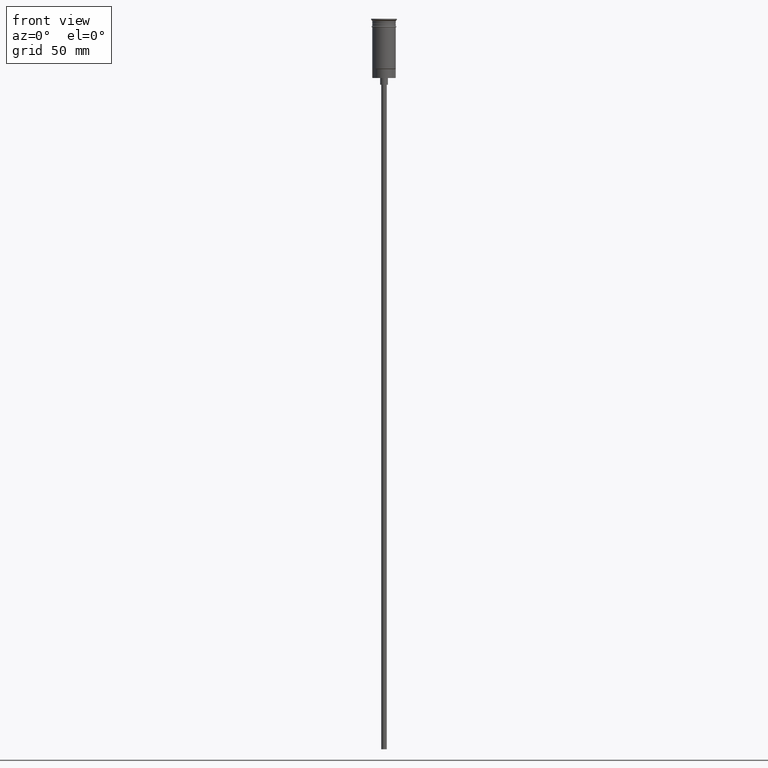
[diagram: clean part render]
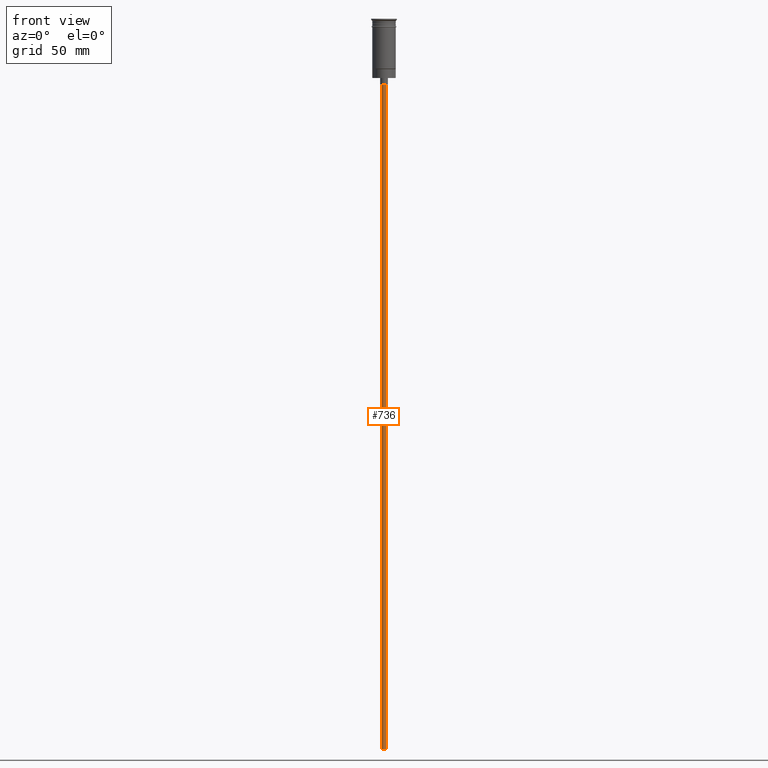
[diagram: same view with one face highlighted and labeled with its STEP entity id]
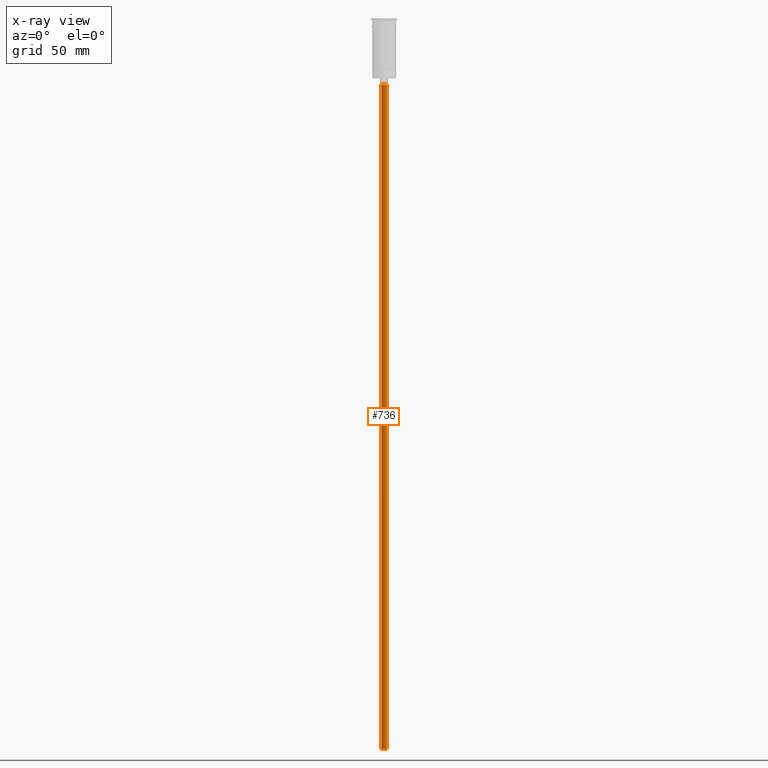
[diagram: x-ray of the same camera — body ghosted, the highlighted face saturated]
A machine part, front view. The second image highlights one B-rep face of the part: STEP entity #736.
The next image is the same camera in x-ray: the body ghosted, the highlighted face saturated — about 0% of this face is hidden behind the body in this view.
In plain terms, the highlighted cylindrical surface (edge-blend (fillet) strip) has radius 1.25 mm, axis along (-0, -0, 1).
Its self-contained STEP definition (entity closure, byte-faithful):
#3 = DIRECTION ( 'NONE',  ( -0.000000000000000000, -0.000000000000000000, 1.000000000000000000 ) ) ;
#38 = AXIS2_PLACEMENT_3D ( 'NONE', #992, #1119, #1507 ) ;
#104 = DIRECTION ( 'NONE',  ( -1.000000000000000000, 0.000000000000000000, 0.000000000000000000 ) ) ;
#109 = DIRECTION ( 'NONE',  ( 0.000000000000000000, 0.000000000000000000, -1.000000000000000000 ) ) ;
#126 = ORIENTED_EDGE ( 'NONE', *, *, #962, .F. ) ;
#218 = VERTEX_POINT ( 'NONE', #461 ) ;
#312 = EDGE_LOOP ( 'NONE', ( #699, #126, #1016, #1198 ) ) ;
#325 = CARTESIAN_POINT ( 'NONE',  ( 0.000000000000000000, 0.000000000000000000, -29.50000000000000000 ) ) ;
#340 = VERTEX_POINT ( 'NONE', #650 ) ;
#380 = EDGE_CURVE ( 'NONE', #1556, #1423, #1485, .T. ) ;
#423 = CIRCLE ( 'NONE', #1106, 1.250000000000000000 ) ;
#439 = EDGE_CURVE ( 'NONE', #340, #1423, #1275, .T. ) ;
#461 = CARTESIAN_POINT ( 'NONE',  ( 1.250000000000000000, 0.000000000000000000, -326.5000000000000000 ) ) ;
#489 = CARTESIAN_POINT ( 'NONE',  ( -1.250000000000000000, 1.530808498934191571E-16, -326.5000000000000000 ) ) ;
#567 = VECTOR ( 'NONE', #3, 1000.000000000000000 ) ;
#630 = AXIS2_PLACEMENT_3D ( 'NONE', #325, #109, #1036 ) ;
#650 = CARTESIAN_POINT ( 'NONE',  ( 1.250000000000000000, 0.000000000000000000, -29.50000000000000000 ) ) ;
#699 = ORIENTED_EDGE ( 'NONE', *, *, #380, .F. ) ;
#723 = DIRECTION ( 'NONE',  ( 0.000000000000000000, 0.000000000000000000, -1.000000000000000000 ) ) ;
#736 = ADVANCED_FACE ( 'NONE', ( #1137 ), #1125, .T. ) ;
#737 = DIRECTION ( 'NONE',  ( -0.000000000000000000, -0.000000000000000000, 1.000000000000000000 ) ) ;
#777 = CARTESIAN_POINT ( 'NONE',  ( -1.250000000000000000, 1.530808498934191571E-16, -326.5000000000000000 ) ) ;
#962 = EDGE_CURVE ( 'NONE', #218, #1556, #423, .T. ) ;
#992 = CARTESIAN_POINT ( 'NONE',  ( 0.000000000000000000, 0.000000000000000000, -326.5000000000000000 ) ) ;
#1016 = ORIENTED_EDGE ( 'NONE', *, *, #1309, .T. ) ;
#1036 = DIRECTION ( 'NONE',  ( -1.000000000000000000, 0.000000000000000000, 0.000000000000000000 ) ) ;
#1052 = VECTOR ( 'NONE', #737, 1000.000000000000000 ) ;
#1106 = AXIS2_PLACEMENT_3D ( 'NONE', #1460, #723, #104 ) ;
#1115 = CARTESIAN_POINT ( 'NONE',  ( 1.250000000000000000, 0.000000000000000000, -326.5000000000000000 ) ) ;
#1119 = DIRECTION ( 'NONE',  ( -0.000000000000000000, -0.000000000000000000, 1.000000000000000000 ) ) ;
#1125 = CYLINDRICAL_SURFACE ( 'NONE', #38, 1.250000000000000000 ) ;
#1137 = FACE_OUTER_BOUND ( 'NONE', #312, .T. ) ;
#1198 = ORIENTED_EDGE ( 'NONE', *, *, #439, .T. ) ;
#1275 = CIRCLE ( 'NONE', #630, 1.250000000000000000 ) ;
#1309 = EDGE_CURVE ( 'NONE', #218, #340, #1462, .T. ) ;
#1413 = CARTESIAN_POINT ( 'NONE',  ( -1.250000000000000000, 1.530808498934191571E-16, -29.50000000000000000 ) ) ;
#1423 = VERTEX_POINT ( 'NONE', #1413 ) ;
#1460 = CARTESIAN_POINT ( 'NONE',  ( 0.000000000000000000, 0.000000000000000000, -326.5000000000000000 ) ) ;
#1462 = LINE ( 'NONE', #1115, #567 ) ;
#1485 = LINE ( 'NONE', #489, #1052 ) ;
#1507 = DIRECTION ( 'NONE',  ( 1.000000000000000000, 0.000000000000000000, 0.000000000000000000 ) ) ;
#1556 = VERTEX_POINT ( 'NONE', #777 ) ;